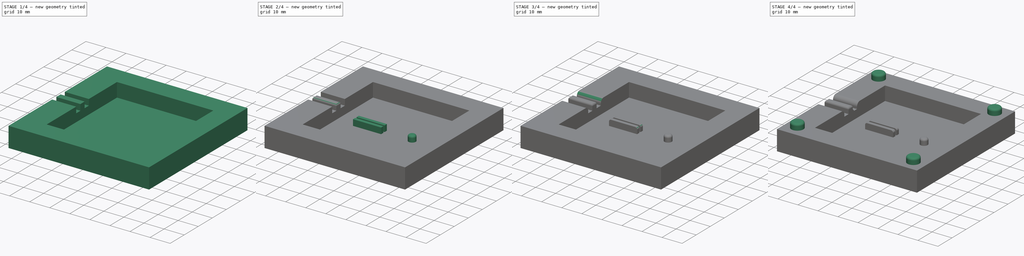
[diagram: build sequence overview — one tinted view per stage of 4, left to right]
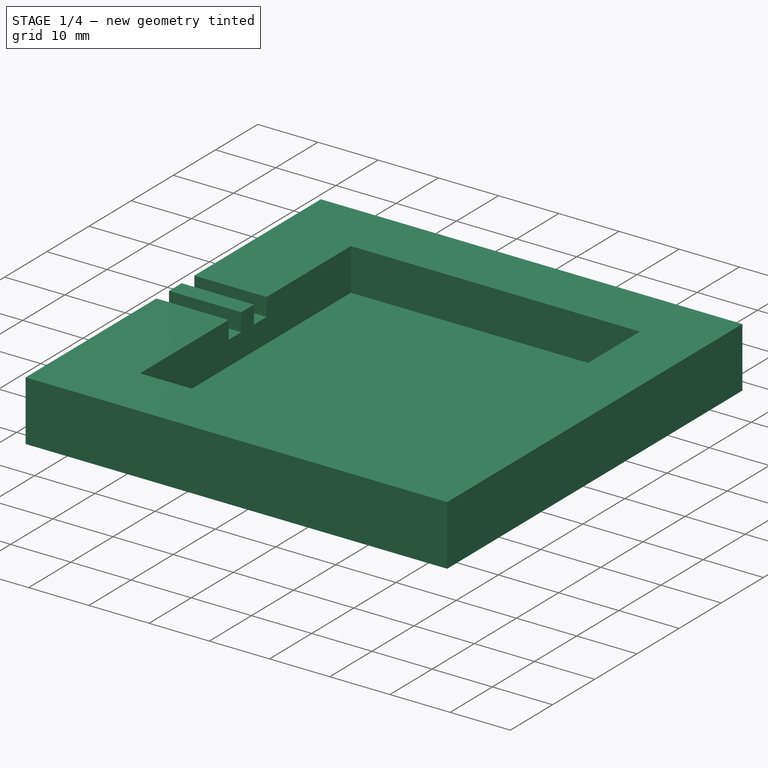
[diagram: stage 1 of 4 — iso view after this stage's code; geometry added in this stage tinted green]
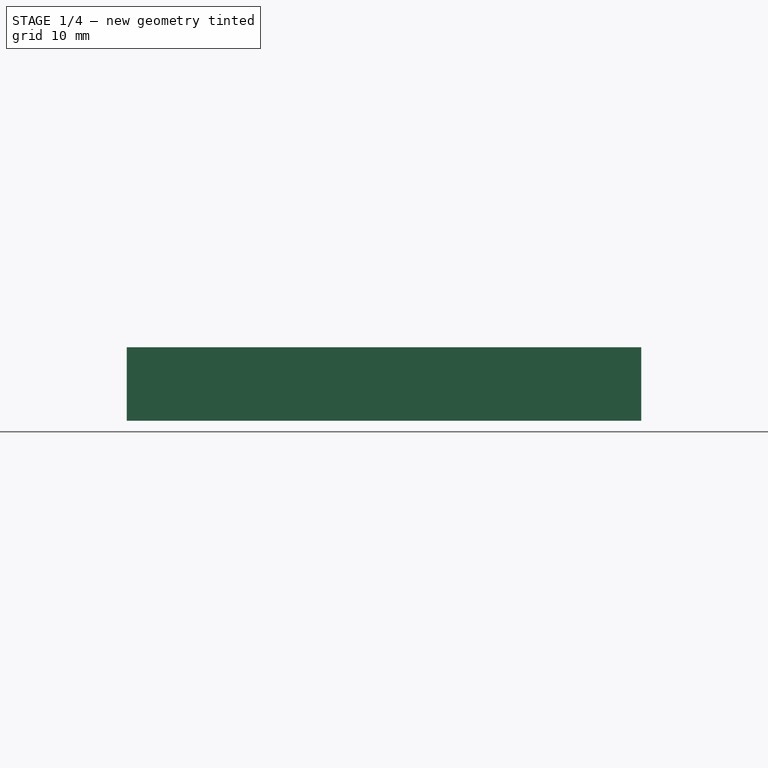
[diagram: stage 1 of 4 — front view after this stage's code; geometry added in this stage tinted green]
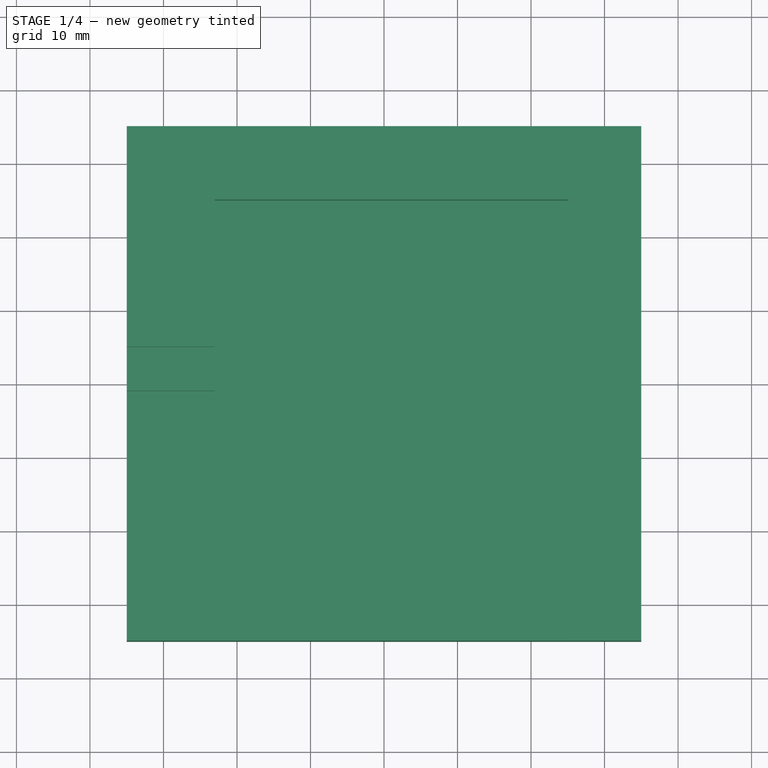
[diagram: stage 1 of 4 — top view after this stage's code; geometry added in this stage tinted green]
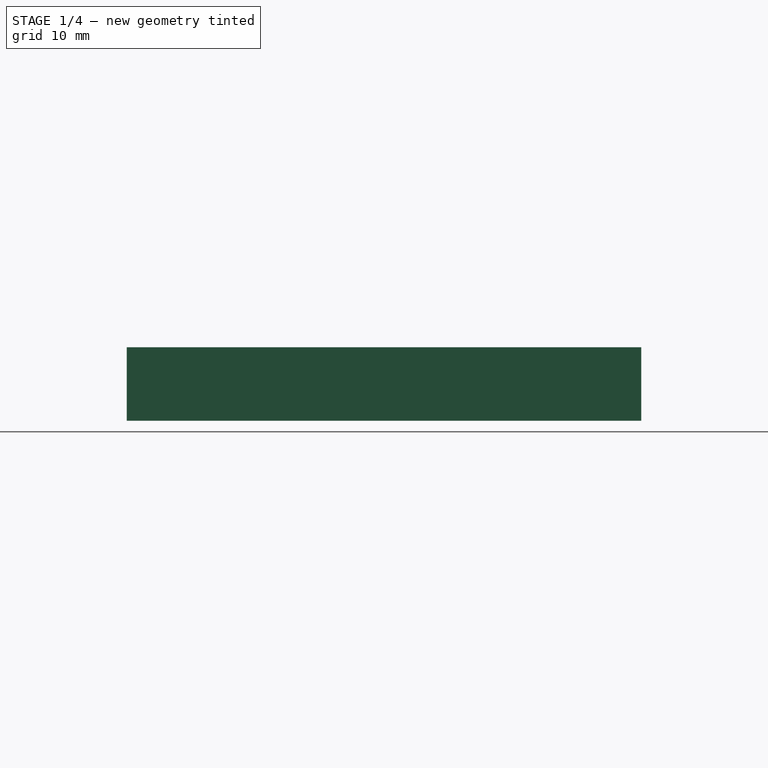
[diagram: stage 1 of 4 — right view after this stage's code; geometry added in this stage tinted green]
FCSTD DOCUMENT  (FreeCAD 0.19R)
Label: button_case
License: All rights reserved
LicenseURL: http://en.wikipedia.org/wiki/All_rights_reserved
objects: Sketcher::SketchObject×5, PartDesign::Fillet×5, PartDesign::Pad×3, PartDesign::Pocket×2, PartDesign::Chamfer×1, PartDesign::Body×1
note: 28 computed .brp shape members not serialized (recipe doc carries the construction recipe); baked Part::Feature solids carry a one-line shape summary decoded from their .brp

FEATURE [Sketcher::SketchObject] Sketch
  FullyConstrained = true
  MapMode = 5
  Support = -> [XY_Plane]
  sketch-geometry (4):
    g0: LineSegment StartX=-35 StartY=35 StartZ=0 EndX=35 EndY=35 EndZ=0
    g1: LineSegment StartX=35 StartY=35 StartZ=0 EndX=35 EndY=-35 EndZ=0
    g2: LineSegment StartX=35 StartY=-35 StartZ=0 EndX=-35 EndY=-35 EndZ=0
    g3: LineSegment StartX=-35 StartY=-35 StartZ=0 EndX=-35 EndY=35 EndZ=0
  constraints (12):
    c: Coincident(g0,g1)
    c: Coincident(g1,g2)
    c: Coincident(g2,g3)
    c: Coincident(g3,g0)
    c: Horizontal(g0)
    c: Horizontal(g2)
    c: Vertical(g1)
    c: Vertical(g3)
    c: DistanceX(g0,g0) = 70
    c: DistanceY(g3,g3) = 70
    c: Distance(g-1,g0) = 35
    c: Distance(g-1,g3) = 35
FEATURE [PartDesign::Pad] Pad
  Direction = (1,1,1)
  Length = 10
  Length2 = 100
  Profile = -> Sketch
  Type = 0
FEATURE [Sketcher::SketchObject] Sketch001
  ExternalGeometry = -> [Pad]
  FullyConstrained = true
  MapMode = 5
  Placement = pos=(0,0,10) rot=(0,0,1;0rad)
  Support = -> [Pad]
  sketch-geometry (4):
    g0: LineSegment StartX=-23 StartY=25 StartZ=0 EndX=25 EndY=25 EndZ=0
    g1: LineSegment StartX=25 StartY=25 StartZ=0 EndX=25 EndY=-25 EndZ=0
    g2: LineSegment StartX=25 StartY=-25 StartZ=0 EndX=-23 EndY=-25 EndZ=0
    g3: LineSegment StartX=-23 StartY=-25 StartZ=0 EndX=-23 EndY=25 EndZ=0
  constraints (12):
    c: Coincident(g0,g1)
    c: Coincident(g1,g2)
    c: Coincident(g2,g3)
    c: Coincident(g3,g0)
    c: Horizontal(g0)
    c: Horizontal(g2)
    c: Vertical(g1)
    c: Vertical(g3)
    c: Distance(g-1,g0) = 25
    c: Distance(g-1,g2) = 25
    c: Distance(g-1,g1) = 25
    c: Distance(g-1,g3) = 23
FEATURE [PartDesign::Pocket] Pocket
  BaseFeature = -> Pad
  Length = 7
  Length2 = 100
  Profile = -> Sketch001
  Type = 0
FEATURE [Sketcher::SketchObject] Sketch002
  ExternalGeometry = -> [Pocket]
  FullyConstrained = true
  MapMode = 5
  Placement = pos=(0,0,10) rot=(0,0,1;0rad)
  Support = -> [Pocket]
  sketch-geometry (8):
    g0: LineSegment StartX=-35 StartY=5 StartZ=0 EndX=-21 EndY=5 EndZ=0
    g1: LineSegment StartX=-21 StartY=5 StartZ=0 EndX=-21 EndY=2 EndZ=0
    g2: LineSegment StartX=-21 StartY=2 StartZ=0 EndX=-35 EndY=2 EndZ=0
    g3: LineSegment StartX=-35 StartY=2 StartZ=0 EndX=-35 EndY=5 EndZ=0
    g4: LineSegment StartX=-35 StartY=-1 StartZ=0 EndX=-21 EndY=-1 EndZ=0
    g5: LineSegment StartX=-21 StartY=-1 StartZ=0 EndX=-21 EndY=-4 EndZ=0
    g6: LineSegment StartX=-21 StartY=-4 StartZ=0 EndX=-35 EndY=-4 EndZ=0
    g7: LineSegment StartX=-35 StartY=-4 StartZ=0 EndX=-35 EndY=-1 EndZ=0
  constraints (24):
    c: Coincident(g0,g1)
    c: Coincident(g1,g2)
    c: Coincident(g2,g3)
    c: Coincident(g3,g0)
    c: Horizontal(g0)
    c: Horizontal(g2)
    c: Vertical(g1)
    c: Vertical(g3)
    c: PointOnObject(g0,g-3)
    c: DistanceY(g3,g3) = 3
    c: DistanceX(g0,g0) = 14
    c: DistanceY(g-1,g1) = 2
    c: Coincident(g4,g5)
    c: Coincident(g5,g6)
    c: Coincident(g6,g7)
    c: Coincident(g7,g4)
    c: Horizontal(g4)
    c: Horizontal(g6)
    c: Vertical(g5)
    c: Vertical(g7)
    c: PointOnObject(g4,g-3)
    c: DistanceY(g7,g7) = 3
    c: DistanceX(g4,g4) = 14
    c: Distance(g-1,g4) = 1
FEATURE [PartDesign::Pocket] Pocket001
  BaseFeature = -> Pocket
  Length = 3
  Length2 = 100
  Profile = -> Sketch002
  Type = 0
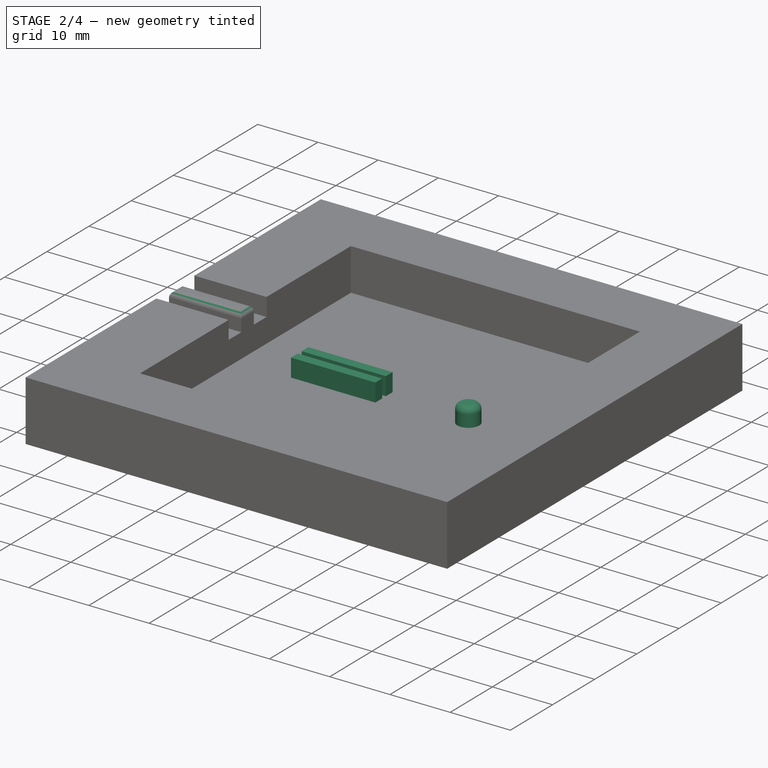
[diagram: stage 2 of 4 — iso view after this stage's code; geometry added in this stage tinted green]
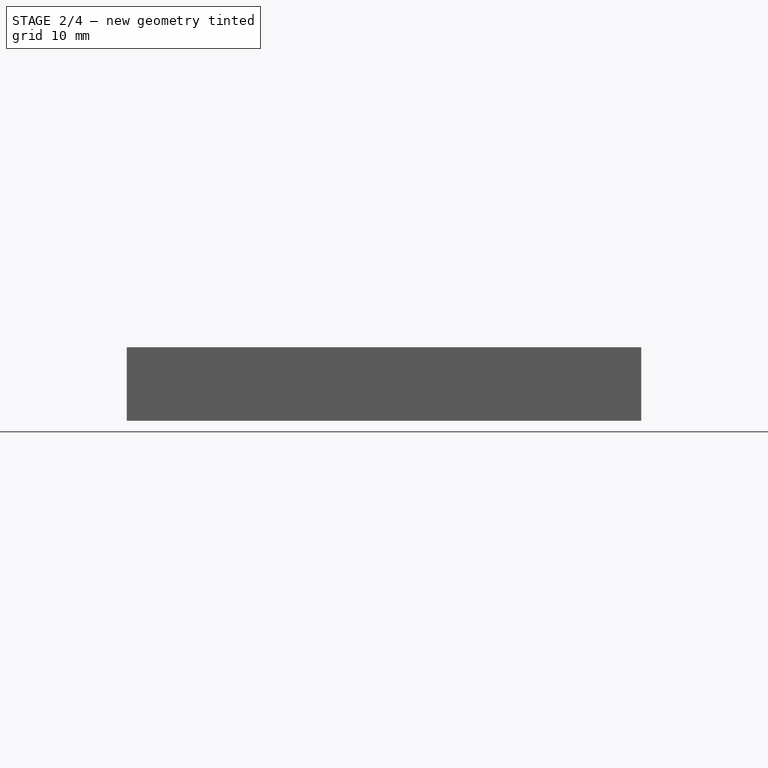
[diagram: stage 2 of 4 — front view after this stage's code; geometry added in this stage tinted green]
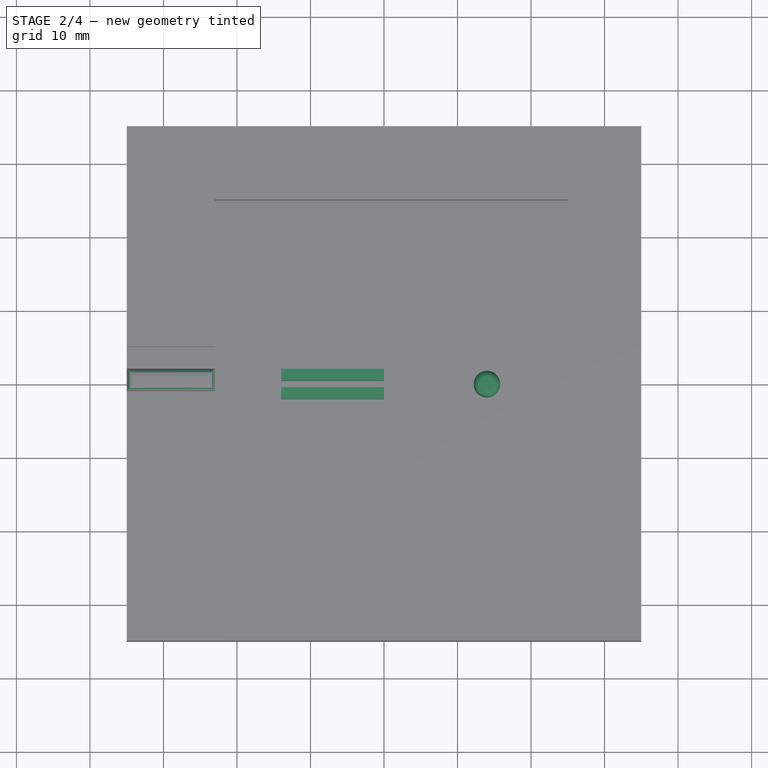
[diagram: stage 2 of 4 — top view after this stage's code; geometry added in this stage tinted green]
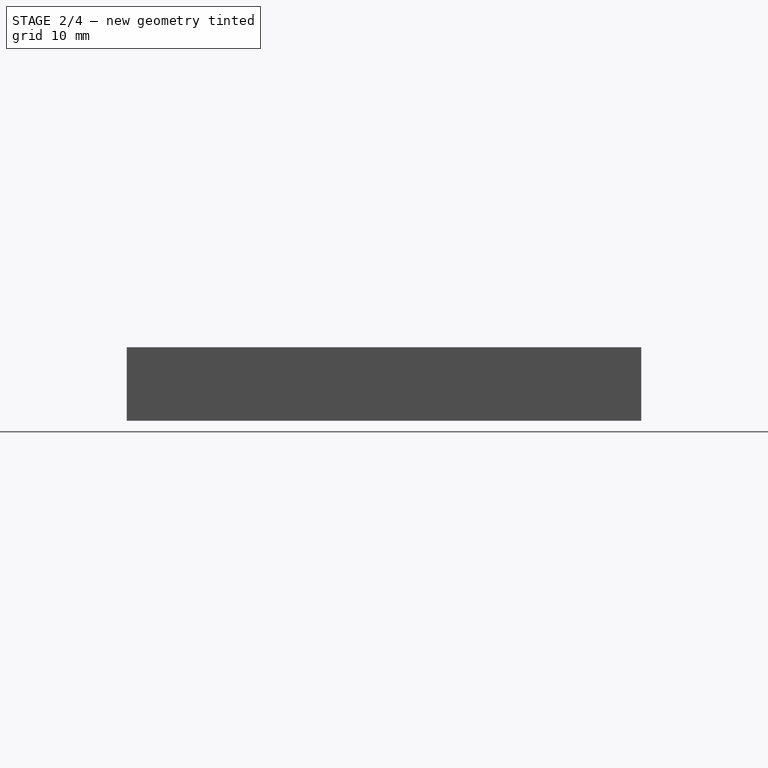
[diagram: stage 2 of 4 — right view after this stage's code; geometry added in this stage tinted green]
FEATURE [PartDesign::Fillet] Fillet
  Base = -> Pocket001 [Face9]
  BaseFeature = -> Pocket001
  Radius = 1
  SupportTransform = false
FEATURE [Sketcher::SketchObject] Sketch003
  FullyConstrained = true
  MapMode = 5
  Placement = pos=(0,0,3) rot=(0,0,1;0rad)
  Support = -> [Fillet]
  sketch-geometry (9):
    g0: Circle CenterX=14 CenterY=0 CenterZ=0 NormalX=0 NormalY=0 NormalZ=1 AngleXU=0 Radius=1.8
    g1: LineSegment StartX=-14 StartY=2.05 StartZ=0 EndX=0 EndY=2.05 EndZ=0
    g2: LineSegment StartX=0 StartY=2.05 StartZ=0 EndX=0 EndY=0.45 EndZ=0
    g3: LineSegment StartX=0 StartY=0.45 StartZ=0 EndX=-14 EndY=0.45 EndZ=0
    g4: LineSegment StartX=-14 StartY=0.45 StartZ=0 EndX=-14 EndY=2.05 EndZ=0
    g5: LineSegment StartX=-14 StartY=-0.45 StartZ=0 EndX=0 EndY=-0.45 EndZ=0
    g6: LineSegment StartX=0 StartY=-0.45 StartZ=0 EndX=0 EndY=-2.05 EndZ=0
    g7: LineSegment StartX=0 StartY=-2.05 StartZ=0 EndX=-14 EndY=-2.05 EndZ=0
    g8: LineSegment StartX=-14 StartY=-2.05 StartZ=0 EndX=-14 EndY=-0.45 EndZ=0
  constraints (27):
    c: Diameter(g0) = 3.6
    c: DistanceY(g-1,g0) = 0
    c: DistanceX(g-1,g0) = 14
    c: Coincident(g1,g2)
    c: Coincident(g2,g3)
    c: Coincident(g3,g4)
    c: Coincident(g4,g1)
    c: Horizontal(g1)
    c: Horizontal(g3)
    c: Vertical(g2)
    c: Vertical(g4)
    c: DistanceX(g1,g1) = 14
    c: DistanceY(g4,g4) = 1.6
    c: DistanceY(g-1,g2) = 0.45
    c: DistanceX(g2,g-1) = 0
    c: Coincident(g5,g6)
    c: Coincident(g6,g7)
    c: Coincident(g7,g8)
    c: Coincident(g8,g5)
    c: Horizontal(g5)
    c: Horizontal(g7)
    c: Vertical(g6)
    c: Vertical(g8)
    c: DistanceX(g5,g5) = 14
    c: DistanceY(g8,g8) = 1.6
    c: DistanceY(g5,g-1) = 0.45
    c: DistanceX(g5,g-1) = 0
FEATURE [PartDesign::Pad] Pad001
  BaseFeature = -> Fillet
  Direction = (1,1,1)
  Length = 3
  Length2 = 100
  Profile = -> Sketch003
  Type = 0
FEATURE [PartDesign::Fillet] Fillet001
  Base = -> Pad001 [Face33]
  BaseFeature = -> Pad001
  Radius = 1
  SupportTransform = false
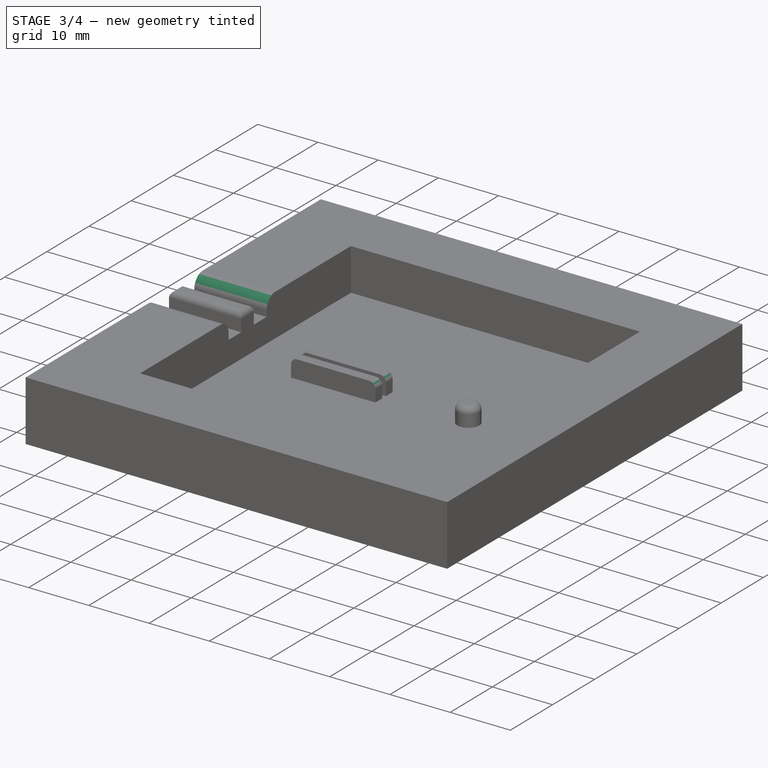
[diagram: stage 3 of 4 — iso view after this stage's code; geometry added in this stage tinted green]
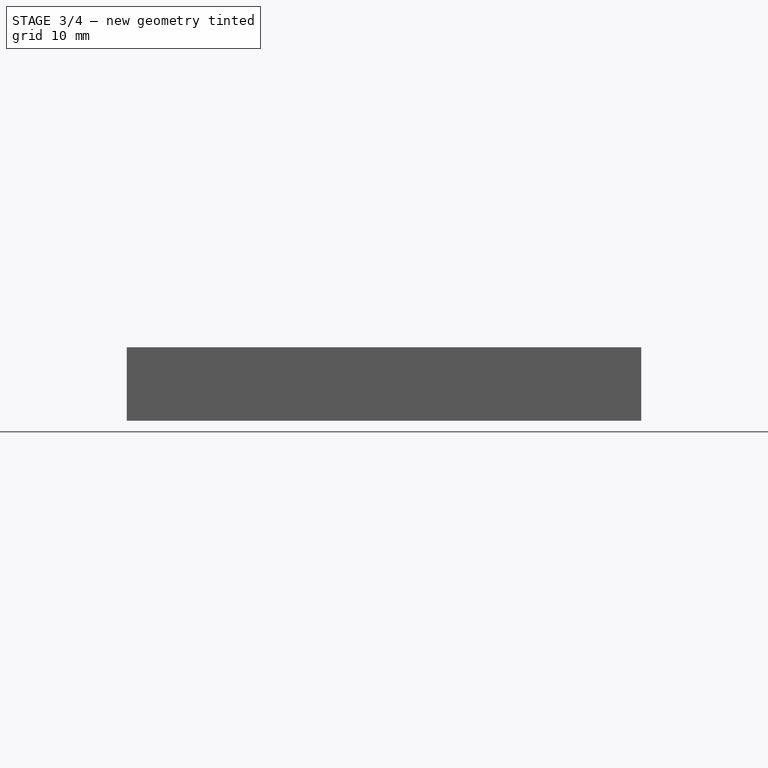
[diagram: stage 3 of 4 — front view after this stage's code; geometry added in this stage tinted green]
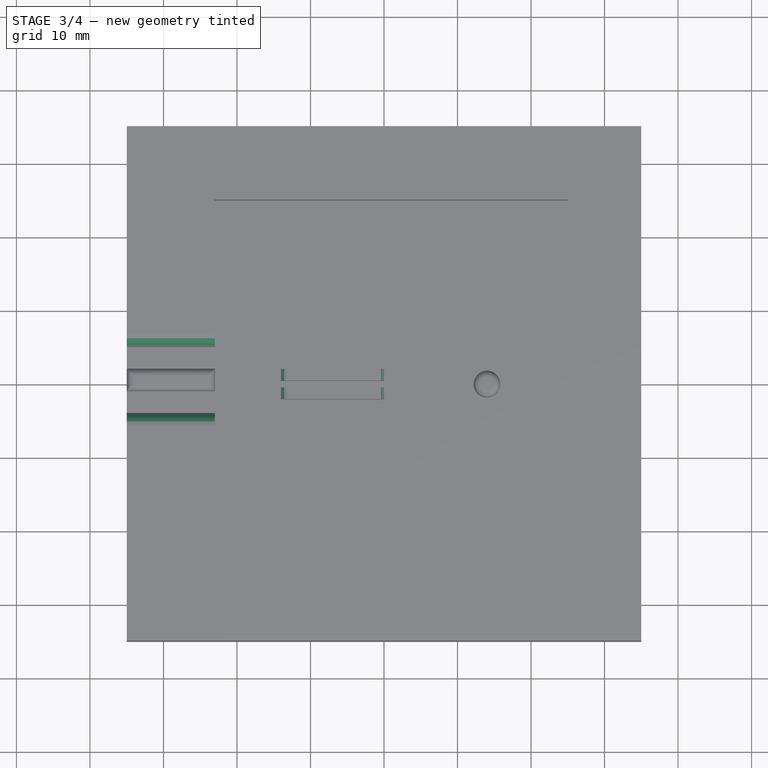
[diagram: stage 3 of 4 — top view after this stage's code; geometry added in this stage tinted green]
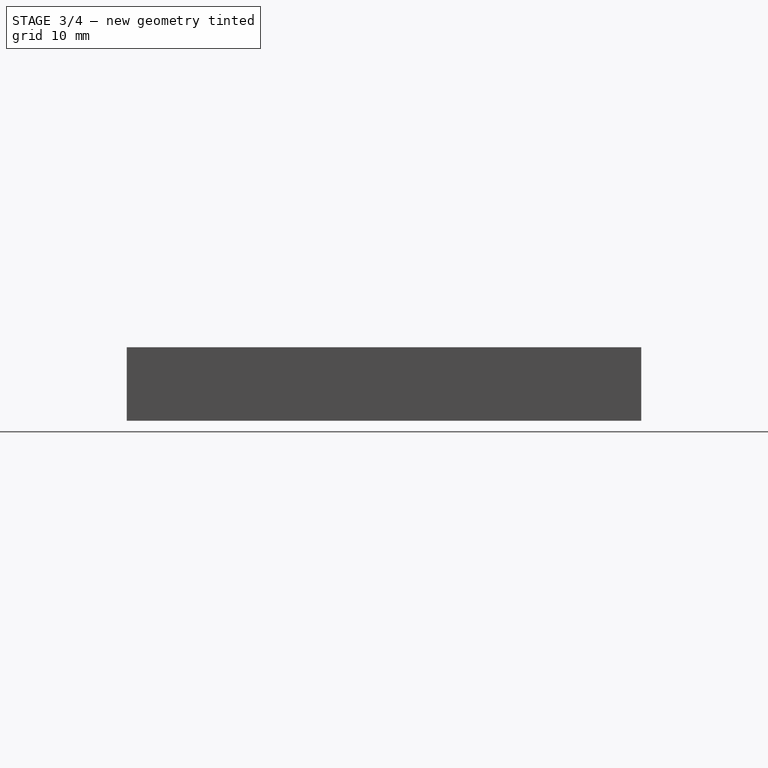
[diagram: stage 3 of 4 — right view after this stage's code; geometry added in this stage tinted green]
FEATURE [PartDesign::Fillet] Fillet002
  Base = -> Fillet001 [Edge38,Edge46,Edge49,Edge41]
  BaseFeature = -> Fillet001
  Radius = 1
  SupportTransform = false
FEATURE [PartDesign::Fillet] Fillet003
  Base = -> Fillet002 [Edge59,Edge60]
  BaseFeature = -> Fillet002
  Radius = 2
  SupportTransform = false
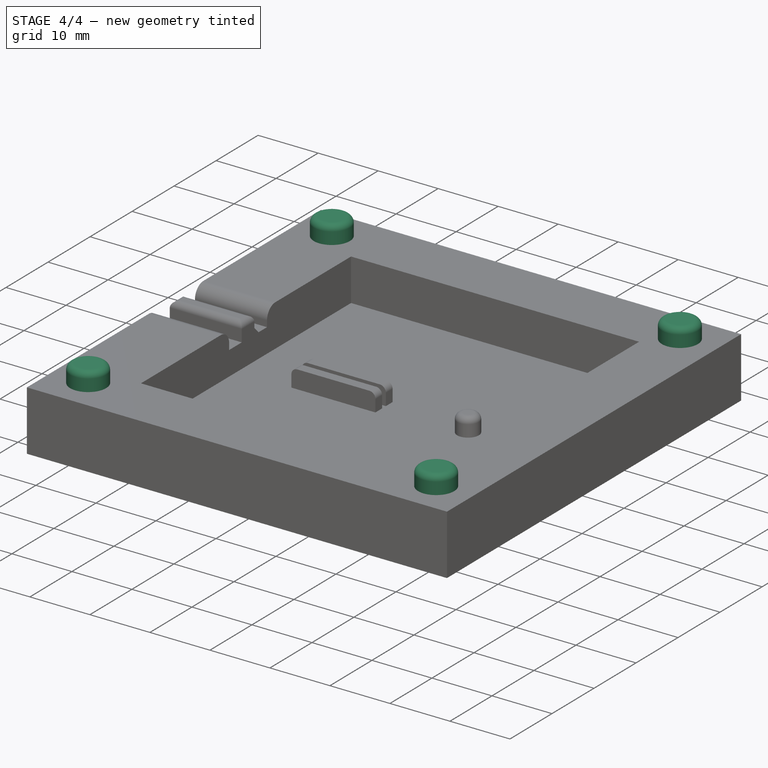
[diagram: stage 4 of 4 — iso view after this stage's code; geometry added in this stage tinted green]
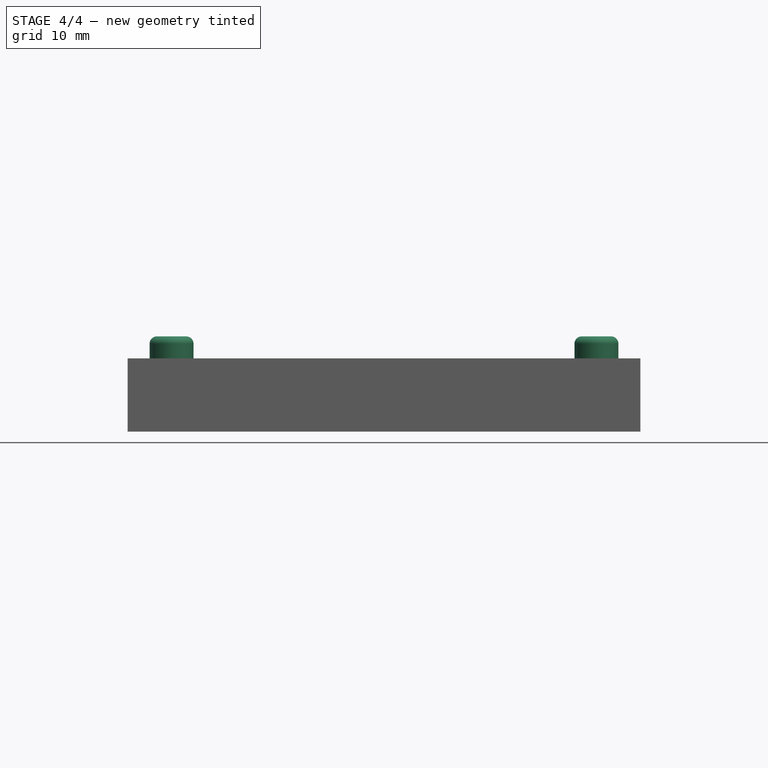
[diagram: stage 4 of 4 — front view after this stage's code; geometry added in this stage tinted green]
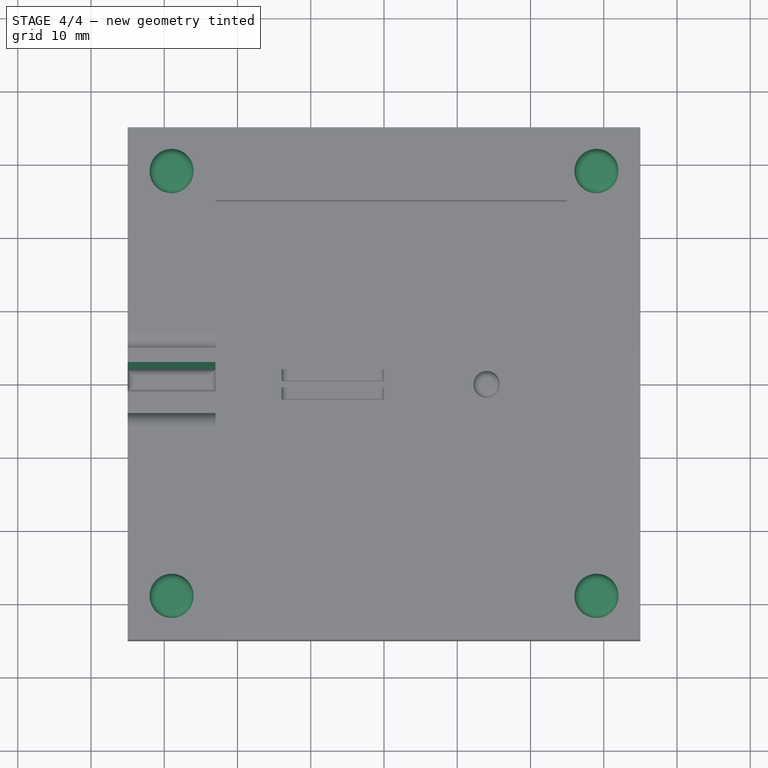
[diagram: stage 4 of 4 — top view after this stage's code; geometry added in this stage tinted green]
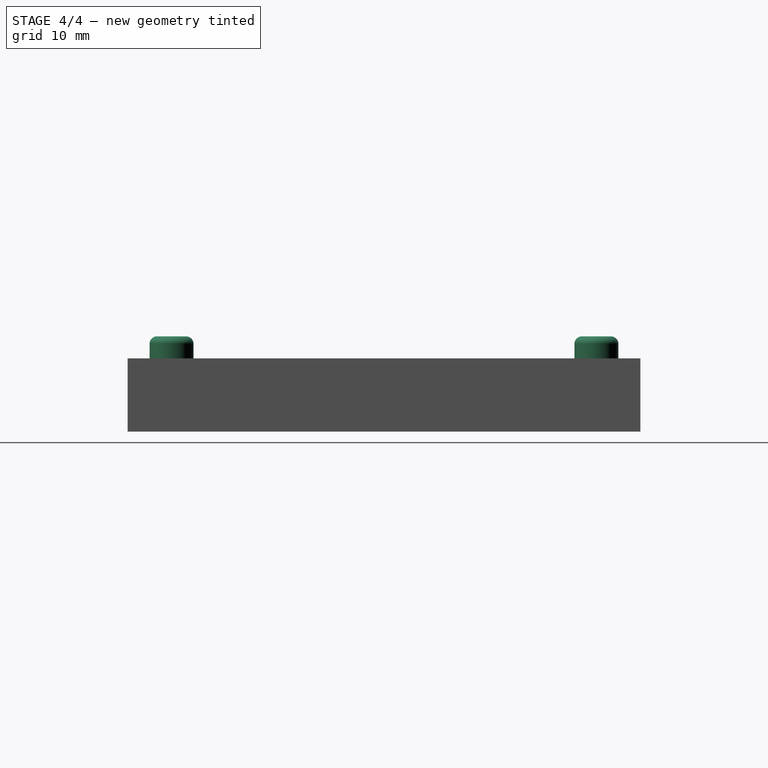
[diagram: stage 4 of 4 — right view after this stage's code; geometry added in this stage tinted green]
FEATURE [PartDesign::Chamfer] Chamfer
  Angle = 50
  Base = -> Fillet003 [Edge51]
  BaseFeature = -> Fillet003
  ChamferType = 0
  FlipDirection = false
  Size = 1
  Size2 = 1
  SupportTransform = false
FEATURE [Sketcher::SketchObject] Sketch004
  ExternalGeometry = -> [Chamfer]
  FullyConstrained = true
  MapMode = 5
  Placement = pos=(0,0,10) rot=(0,0,1;0rad)
  Support = -> [Chamfer]
  sketch-geometry (4):
    g0: Circle CenterX=-29 CenterY=29 CenterZ=0 NormalX=0 NormalY=0 NormalZ=1 AngleXU=0 Radius=3
    g1: Circle CenterX=29 CenterY=29 CenterZ=0 NormalX=0 NormalY=0 NormalZ=1 AngleXU=0 Radius=3
    g2: Circle CenterX=29 CenterY=-29 CenterZ=0 NormalX=0 NormalY=0 NormalZ=1 AngleXU=0 Radius=3
    g3: Circle CenterX=-29 CenterY=-29 CenterZ=0 NormalX=0 NormalY=0 NormalZ=1 AngleXU=0 Radius=3
  constraints (13):
    c: Radius(g0) = 3
    c: DistanceY(g-3,g-3) = 0
    c: Distance(g0,g-3) = 6
    c: Distance(g0,g-4) = 6
    c: Radius(g1) = 3
    c: Distance(g1,g-3) = 6
    c: Distance(g1,g-7) = 6
    c: Radius(g2) = 3
    c: Distance(g2,g-7) = 6
    c: Distance(g2,g-6) = 6
    c: Radius(g3) = 3
    c: Distance(g3,g-5) = 6
    c: Distance(g3,g-6) = 6
FEATURE [PartDesign::Pad] Pad002
  BaseFeature = -> Chamfer
  Direction = (1,1,1)
  Length = 3
  Length2 = 100
  Profile = -> Sketch004
  Type = 0
FEATURE [PartDesign::Fillet] Fillet004
  Base = -> Pad002 [Face42,Edge84,Edge80,Face40]
  BaseFeature = -> Pad002
  Radius = 1
  SupportTransform = false
FEATURE [PartDesign::Body] Body
  Group = -> [Sketch,Pad,Sketch001,Pocket,Sketch002,Pocket001,Fillet,Sketch003,Pad001,Fillet001,Fillet002,Fillet003,Chamfer,Sketch004,Pad002,Fillet004]
  Origin = -> Origin
  Tip = -> Fillet004
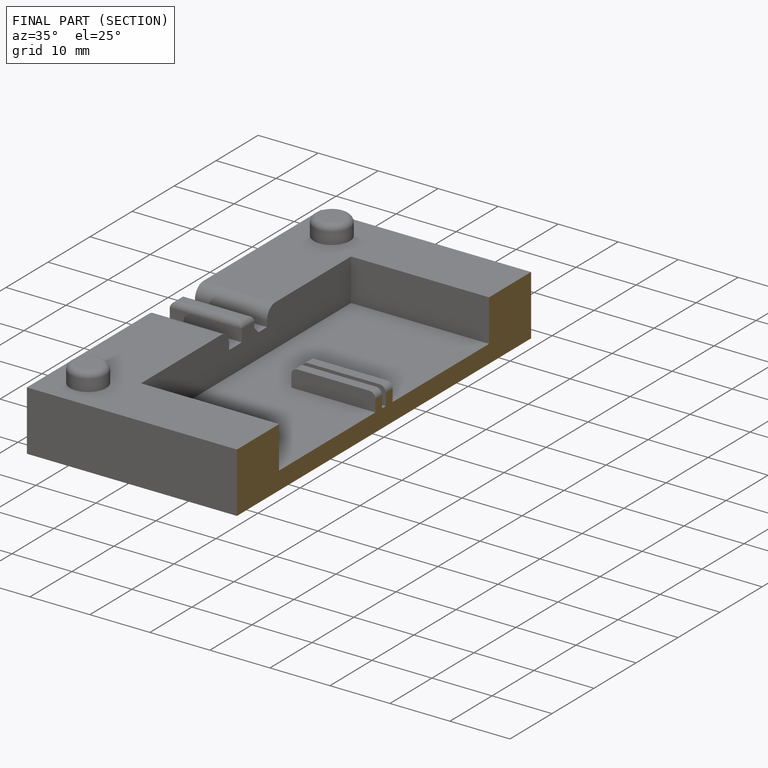
[diagram: finished part — half-section view (interior)]
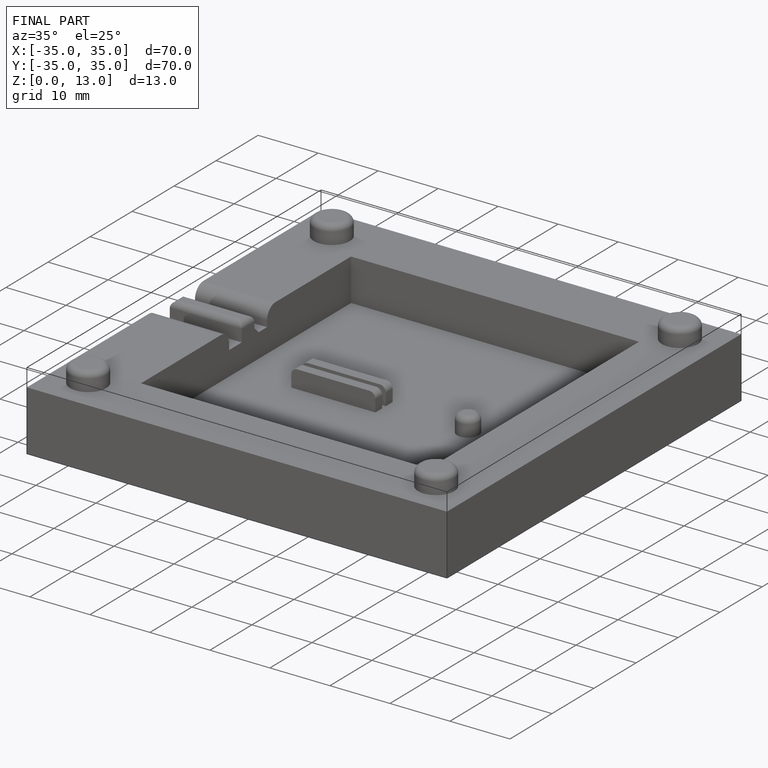
[diagram: finished part — iso view with bounding-box wireframe]
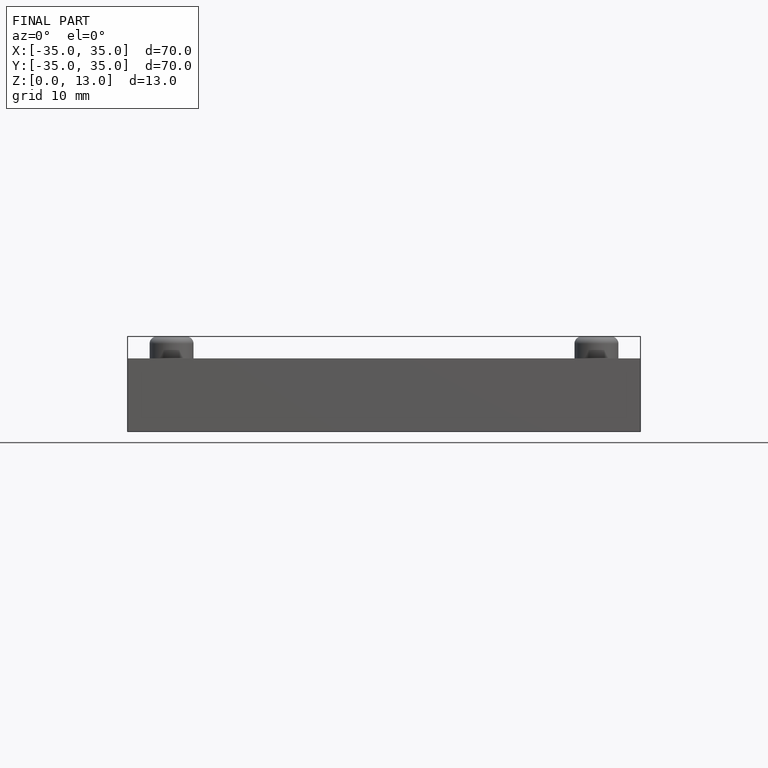
[diagram: finished part — front view with bounding-box wireframe]
